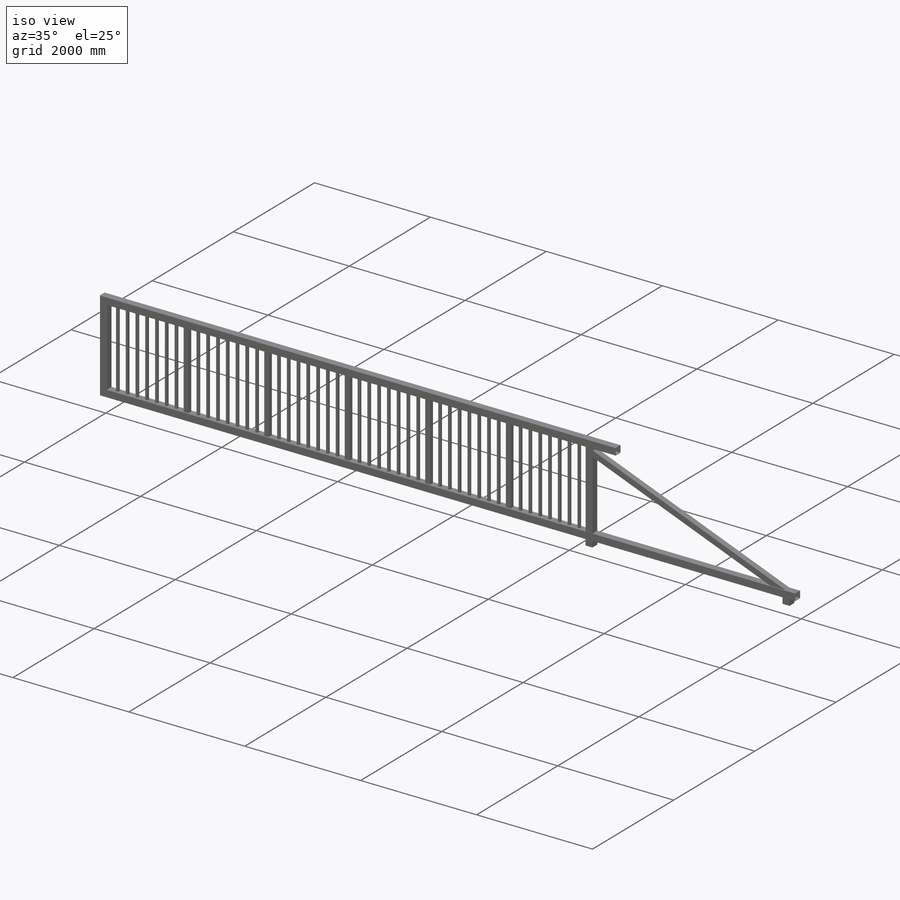
[diagram: iso view]
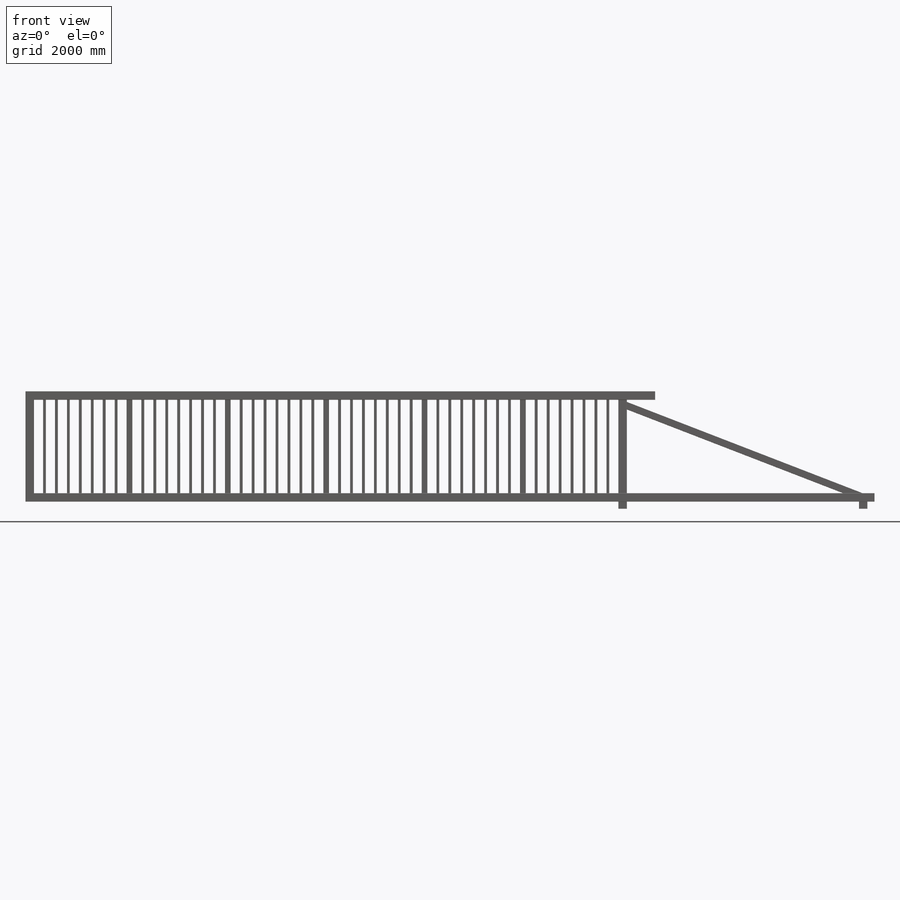
[diagram: front view]
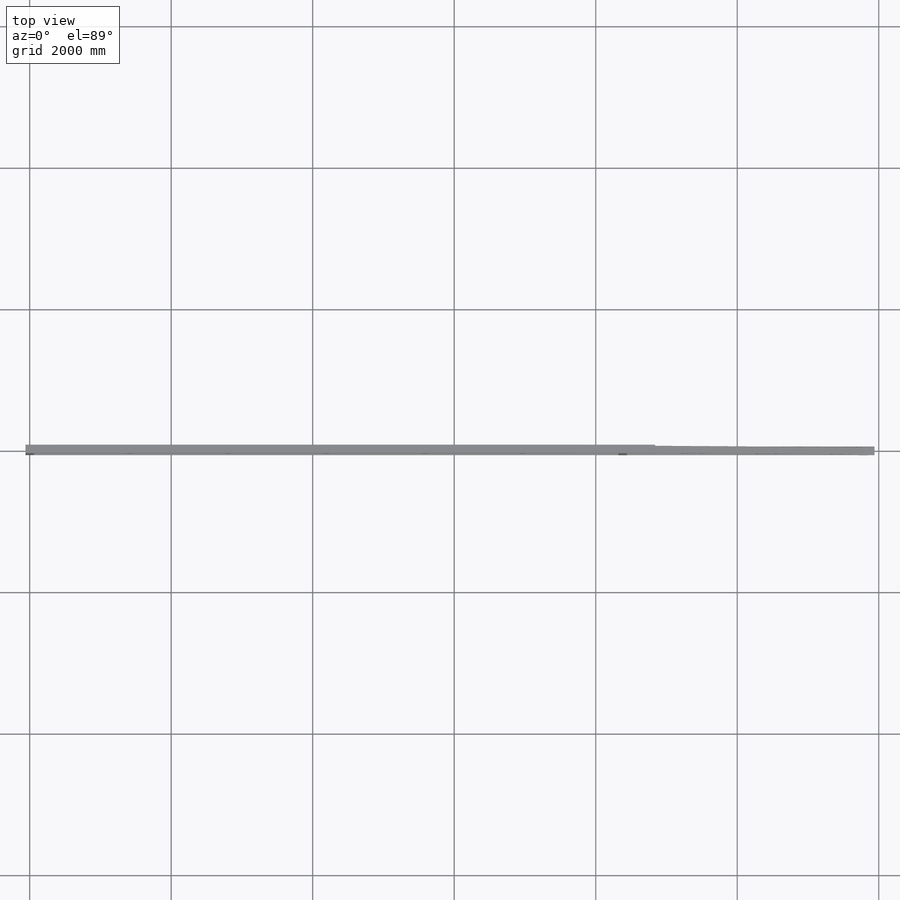
[diagram: top view]
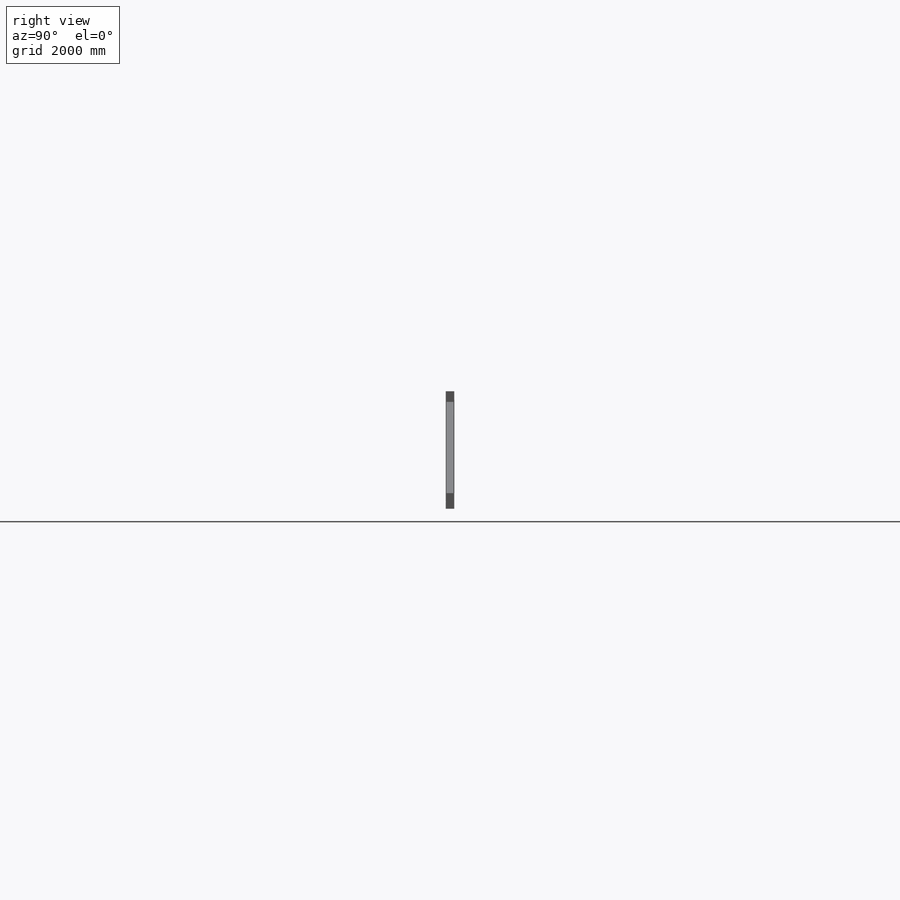
[diagram: right view]
SOLIDWORKS PART (.sldprt)
format: sldprt  version: not decoded by parser v0  size: 2,351,104 bytes
history: native  units: mm
features: plane x8, sketch x8, cut_extrude x2, pattern_linear x2, material x1, extrude x1 + 10 further entries (+10 scaffold rows collapsed)
feature tree (42):
  scaffold x10  (default folders/planes/origin — collapsed)
  material  "1.0037 (S235JR)"
  "Zuschnittslistenelement2"
  "Zuschnittslistenelement3"
  "Zuschnittslistenelement4"
  "Zuschnittslistenelement5"
  "Zuschnittslistenelement6"
  "Zuschnittslistenelement8"
  "Zuschnittslistenelement9"
  "Zuschnittslistenelement10"
  "Zuschnittslistenelement12"
  "Zuschnittslistenelement13"
  plane  "Ebene vorne"
  plane  "Ebene oben"
  plane  "Ebene rechts"
  sketch  "Skizze1"  dims[c1.D1=8840.0mm c1.D2=1440.0mm c1.D3=460.0mm c1.D4=1410.0mm c1.D5=1390.0mm c2.D3=480.0mm c2.D1=8380.0mm c3.D3=460.0mm c3.D6=11940.0mm c3.D7=120.0mm c3.D8=150.0mm c3.D9=60.0mm c3.D10=60.0mm c3.D11=60.0mm c3.D12=40.0mm c3.D13=148.75mm]
  plane  "Ebene1"
  sketch  "Skizze13"  dims[D3=4.0mm D1=120.0mm D2=120.0mm D4=3.0mm]
  plane  "Ebene2"
  sketch  "Skizze14"  dims[D3=4.0mm D1=80.0mm D2=80.0mm D4=3.0mm]
  plane  "Ebene3"  Offset=0mm
  plane  "Ebene4"
  sketch  "Skizze16"  dims[D3=4.0mm D1=100.0mm D2=100.0mm D4=3.0mm]
  sketch  "Skizze17"
  cut_extrude  "Schnitt-Linear austragen1"  [1 undecoded]
  plane  "Ebene5"
  sketch  "Skizze19"  dims[D3=3.5mm D1=40.0mm D2=40.0mm D4=2.5mm]
  pattern_linear  "Lineares Muster1"  Count1=7 Count2=1 Spacing1=168.75mm Spacing2=10mm
  pattern_linear  "Lineares Muster2"  Count1=6 Count2=1 Spacing1=1390mm Spacing2=10mm
  sketch  "Skizze27"
  cut_extrude  "Schnitt-Linear austragen2"  [1 undecoded]
  sketch  "Skizze28"  dims[D1=120.0mm D2=120.0mm D3=120.0mm D4=100.0mm]
  extrude  "Aufsatz-Linear austragen1"  Depth=100mm
decode coverage: 9 of 13 modeling features carry decoded parameters; 10 rows unclassified (native names shown)
note: 2 parameter values undecoded
note: suppression state not decoded; provenance and decode notes live in map.json
